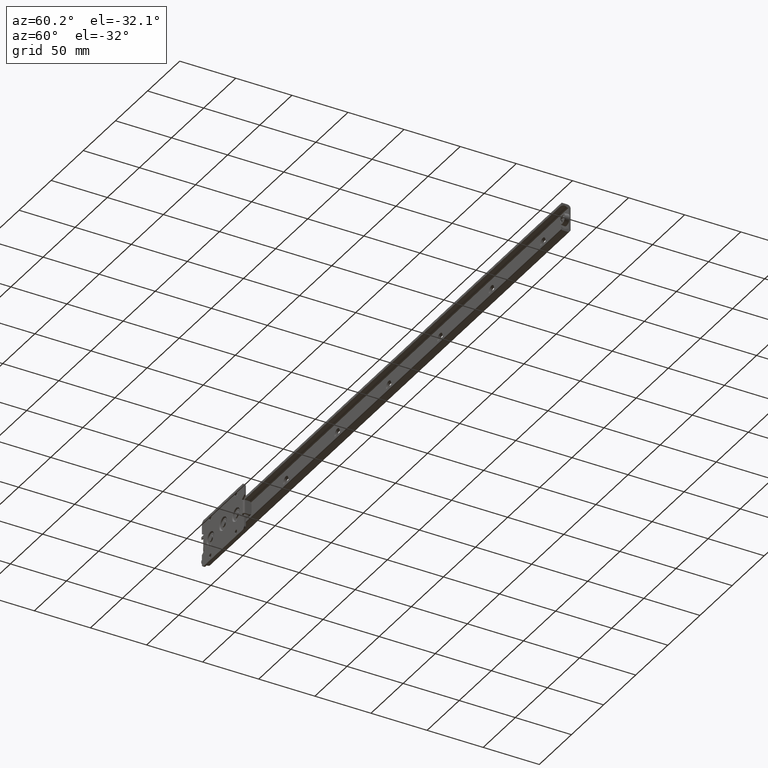
[diagram: clean part render]
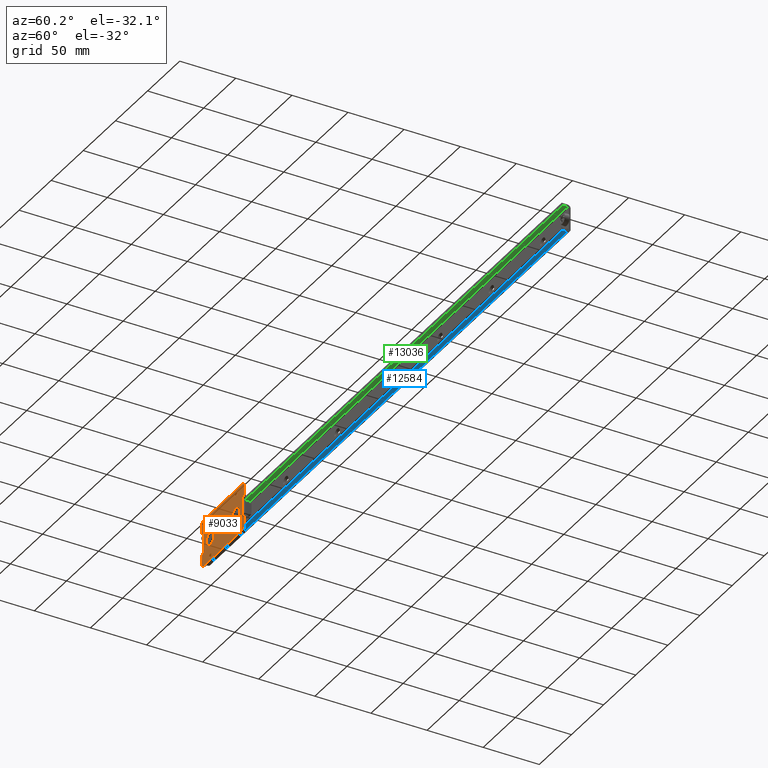
[diagram: same view with three faces highlighted in distinct colors, each labeled with its STEP entity id]
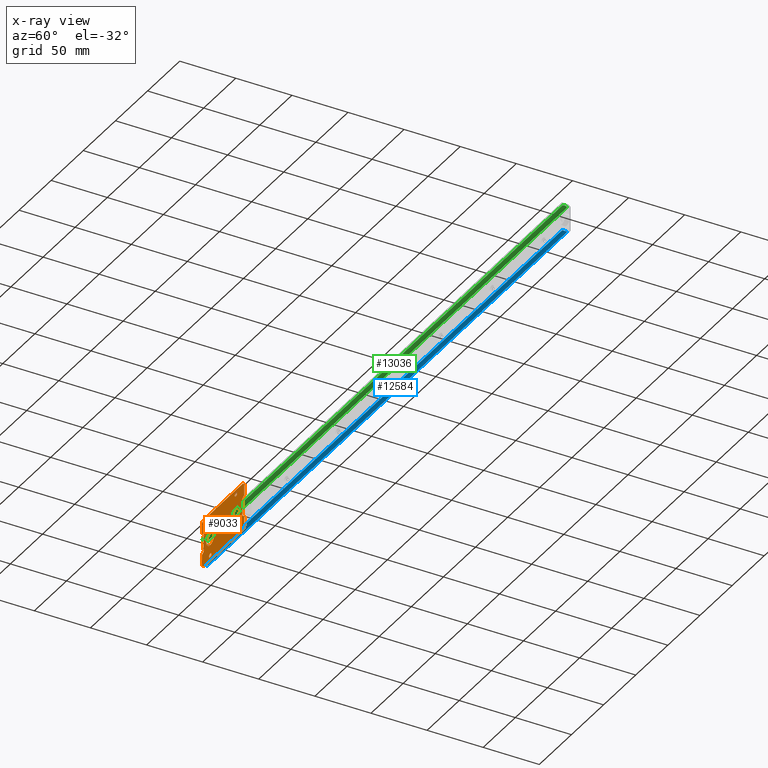
[diagram: x-ray of the same camera — body ghosted, the three highlighted faces saturated]
A machine part, auxiliary view with three faces highlighted in distinct colors.
The next image is the same camera in x-ray (body ghosted, the three faces saturated) — at least one of them is partly hidden behind the body in this view.
Their STEP definitions:

[orange] entity #9033 — the highlighted face is a freeform B-spline surface patch.
#6593=CARTESIAN_POINT('',(18.253264102769869,-12.0,17.106834944318980));
#6594=VERTEX_POINT('',#6593);
#6595=CARTESIAN_POINT('',(20.0,-12.0,15.250000000000000));
#6596=VERTEX_POINT('',#6595);
#6597=CARTESIAN_POINT('',(18.253264102769869,-12.000000000000002,17.106834944318983));
#6598=CARTESIAN_POINT('',(18.250000000000000,-12.000000000000004,17.053467335839208));
#6599=CARTESIAN_POINT('',(18.250000000000000,-12.0,17.0));
#6600=CARTESIAN_POINT('',(18.250000000000000,-12.0,15.250000000000002));
#6601=CARTESIAN_POINT('',(20.0,-12.0,15.250000000000000));
#6609=(BOUNDED_CURVE()B_SPLINE_CURVE(2,(#6597,#6598,#6599,#6600,#6601),.UNSPECIFIED.,.F.,.U.)B_SPLINE_CURVE_WITH_KNOTS((3,2,3),(0.239332962228832,0.250000000000000,0.500000000000000),.UNSPECIFIED.)CURVE()GEOMETRIC_REPRESENTATION_ITEM()RATIONAL_B_SPLINE_CURVE((0.976072041645049,0.987502787887992,1.0,0.707106781186547,1.0))REPRESENTATION_ITEM(''));
#6610=EDGE_CURVE('',#6594,#6596,#6609,.T.);
#6612=CARTESIAN_POINT('',(21.746735897230138,-12.0,16.893165055681020));
#6613=VERTEX_POINT('',#6612);
#6614=CARTESIAN_POINT('',(20.0,-12.0,15.250000000000000));
#6615=CARTESIAN_POINT('',(21.646235616959416,-12.0,15.250000000000002));
#6616=CARTESIAN_POINT('',(21.746735897230138,-12.000000000000002,16.893165055681024));
#6624=(BOUNDED_CURVE()B_SPLINE_CURVE(2,(#6614,#6615,#6616),.UNSPECIFIED.,.F.,.U.)B_SPLINE_CURVE_WITH_KNOTS((3,3),(0.500000000000000,0.739332962228833),.UNSPECIFIED.)CURVE()GEOMETRIC_REPRESENTATION_ITEM()RATIONAL_B_SPLINE_CURVE((1.0,0.719603993298555,0.976072041645050))REPRESENTATION_ITEM(''));
#6625=EDGE_CURVE('',#6596,#6613,#6624,.T.);
#6692=CARTESIAN_POINT('',(20.0,-12.0,18.750000000000000));
#6693=VERTEX_POINT('',#6692);
#6694=CARTESIAN_POINT('',(20.0,-12.0,18.750000000000000));
#6695=CARTESIAN_POINT('',(18.353764383040602,-12.0,18.750000000000000));
#6696=CARTESIAN_POINT('',(18.253264102769865,-12.000000000000002,17.106834944318983));
#6704=(BOUNDED_CURVE()B_SPLINE_CURVE(2,(#6694,#6695,#6696),.UNSPECIFIED.,.F.,.U.)B_SPLINE_CURVE_WITH_KNOTS((3,3),(0.0,0.239332962228832),.UNSPECIFIED.)CURVE()GEOMETRIC_REPRESENTATION_ITEM()RATIONAL_B_SPLINE_CURVE((1.0,0.719603993298556,0.976072041645048))REPRESENTATION_ITEM(''));
#6705=EDGE_CURVE('',#6693,#6594,#6704,.T.);
#6739=CARTESIAN_POINT('',(21.746735897230131,-11.999999999999996,16.893165055681020));
#6740=CARTESIAN_POINT('',(21.750000000000004,-12.0,16.946532664160792));
#6741=CARTESIAN_POINT('',(21.750000000000000,-12.0,17.0));
#6742=CARTESIAN_POINT('',(21.750000000000004,-12.0,18.750000000000007));
#6743=CARTESIAN_POINT('',(20.0,-12.0,18.750000000000000));
#6751=(BOUNDED_CURVE()B_SPLINE_CURVE(2,(#6739,#6740,#6741,#6742,#6743),.UNSPECIFIED.,.F.,.U.)B_SPLINE_CURVE_WITH_KNOTS((3,2,3),(0.739332962228833,0.750000000000000,1.0),.UNSPECIFIED.)CURVE()GEOMETRIC_REPRESENTATION_ITEM()RATIONAL_B_SPLINE_CURVE((0.976072041645049,0.987502787887992,1.0,0.707106781186547,1.0))REPRESENTATION_ITEM(''));
#6752=EDGE_CURVE('',#6613,#6693,#6751,.T.);
#6775=CARTESIAN_POINT('',(58.253264102769862,-12.0,17.106834944318980));
#6776=VERTEX_POINT('',#6775);
#6777=CARTESIAN_POINT('',(60.0,-12.0,15.250000000000000));
#6778=VERTEX_POINT('',#6777);
#6779=CARTESIAN_POINT('',(58.253264102769862,-12.000000000000005,17.106834944318976));
#6780=CARTESIAN_POINT('',(58.249999999999993,-12.000000000000005,17.053467335839208));
#6781=CARTESIAN_POINT('',(58.249999999999993,-12.0,17.0));
#6782=CARTESIAN_POINT('',(58.250000000000000,-12.0,15.250000000000002));
#6783=CARTESIAN_POINT('',(60.0,-12.0,15.250000000000000));
#6791=(BOUNDED_CURVE()B_SPLINE_CURVE(2,(#6779,#6780,#6781,#6782,#6783),.UNSPECIFIED.,.F.,.U.)B_SPLINE_CURVE_WITH_KNOTS((3,2,3),(0.239332962228832,0.250000000000000,0.500000000000000),.UNSPECIFIED.)CURVE()GEOMETRIC_REPRESENTATION_ITEM()RATIONAL_B_SPLINE_CURVE((0.976072041645049,0.987502787887992,1.0,0.707106781186547,1.0))REPRESENTATION_ITEM(''));
#6792=EDGE_CURVE('',#6776,#6778,#6791,.T.);
#6794=CARTESIAN_POINT('',(61.746735897230138,-12.0,16.893165055681020));
#6795=VERTEX_POINT('',#6794);
#6796=CARTESIAN_POINT('',(60.0,-12.0,15.250000000000000));
#6797=CARTESIAN_POINT('',(61.646235616959409,-12.000000000000002,15.249999999999998));
#6798=CARTESIAN_POINT('',(61.746735897230131,-11.999999999999998,16.893165055681017));
#6806=(BOUNDED_CURVE()B_SPLINE_CURVE(2,(#6796,#6797,#6798),.UNSPECIFIED.,.F.,.U.)B_SPLINE_CURVE_WITH_KNOTS((3,3),(0.500000000000000,0.739332962228832),.UNSPECIFIED.)CURVE()GEOMETRIC_REPRESENTATION_ITEM()RATIONAL_B_SPLINE_CURVE((1.0,0.719603993298556,0.976072041645048))REPRESENTATION_ITEM(''));
#6807=EDGE_CURVE('',#6778,#6795,#6806,.T.);
#6874=CARTESIAN_POINT('',(60.0,-12.0,18.750000000000000));
#6875=VERTEX_POINT('',#6874);
#6876=CARTESIAN_POINT('',(60.0,-12.0,18.750000000000000));
#6877=CARTESIAN_POINT('',(58.353764383040591,-11.999999999999998,18.750000000000007));
#6878=CARTESIAN_POINT('',(58.253264102769862,-12.000000000000005,17.106834944318976));
#6886=(BOUNDED_CURVE()B_SPLINE_CURVE(2,(#6876,#6877,#6878),.UNSPECIFIED.,.F.,.U.)B_SPLINE_CURVE_WITH_KNOTS((3,3),(0.0,0.239332962228832),.UNSPECIFIED.)CURVE()GEOMETRIC_REPRESENTATION_ITEM()RATIONAL_B_SPLINE_CURVE((1.0,0.719603993298555,0.976072041645049))REPRESENTATION_ITEM(''));
#6887=EDGE_CURVE('',#6875,#6776,#6886,.T.);
#6921=CARTESIAN_POINT('',(61.746735897230131,-12.000000000000005,16.893165055681024));
#6922=CARTESIAN_POINT('',(61.750000000000000,-11.999999999999995,16.946532664160799));
#6923=CARTESIAN_POINT('',(61.750000000000000,-12.0,17.0));
#6924=CARTESIAN_POINT('',(61.750000000000000,-12.0,18.750000000000007));
#6925=CARTESIAN_POINT('',(60.0,-12.0,18.750000000000000));
#6933=(BOUNDED_CURVE()B_SPLINE_CURVE(2,(#6921,#6922,#6923,#6924,#6925),.UNSPECIFIED.,.F.,.U.)B_SPLINE_CURVE_WITH_KNOTS((3,2,3),(0.739332962228832,0.750000000000000,1.0),.UNSPECIFIED.)CURVE()GEOMETRIC_REPRESENTATION_ITEM()RATIONAL_B_SPLINE_CURVE((0.976072041645049,0.987502787887992,1.0,0.707106781186547,1.0))REPRESENTATION_ITEM(''));
#6934=EDGE_CURVE('',#6795,#6875,#6933,.T.);
#6957=CARTESIAN_POINT('',(58.253264102769862,-12.0,-16.893165055681020));
#6958=VERTEX_POINT('',#6957);
#6959=CARTESIAN_POINT('',(60.0,-12.0,-18.750000000000000));
#6960=VERTEX_POINT('',#6959);
#6961=CARTESIAN_POINT('',(58.253264102769862,-12.000000000000005,-16.893165055681024));
#6962=CARTESIAN_POINT('',(58.249999999999993,-12.000000000000005,-16.946532664160799));
#6963=CARTESIAN_POINT('',(58.249999999999993,-12.0,-17.0));
#6964=CARTESIAN_POINT('',(58.250000000000000,-12.0,-18.750000000000007));
#6965=CARTESIAN_POINT('',(60.0,-12.0,-18.750000000000000));
#6973=(BOUNDED_CURVE()B_SPLINE_CURVE(2,(#6961,#6962,#6963,#6964,#6965),.UNSPECIFIED.,.F.,.U.)B_SPLINE_CURVE_WITH_KNOTS((3,2,3),(0.239332962228832,0.250000000000000,0.500000000000000),.UNSPECIFIED.)CURVE()GEOMETRIC_REPRESENTATION_ITEM()RATIONAL_B_SPLINE_CURVE((0.976072041645049,0.987502787887992,1.0,0.707106781186547,1.0))REPRESENTATION_ITEM(''));
#6974=EDGE_CURVE('',#6958,#6960,#6973,.T.);
#6976=CARTESIAN_POINT('',(61.746735897230117,-12.0,-17.106834944318980));
#6977=VERTEX_POINT('',#6976);
#6978=CARTESIAN_POINT('',(60.0,-12.0,-18.750000000000000));
#6979=CARTESIAN_POINT('',(61.646235616959409,-12.0,-18.750000000000000));
#6980=CARTESIAN_POINT('',(61.746735897230124,-12.000000000000002,-17.106834944318972));
#6988=(BOUNDED_CURVE()B_SPLINE_CURVE(2,(#6978,#6979,#6980),.UNSPECIFIED.,.F.,.U.)B_SPLINE_CURVE_WITH_KNOTS((3,3),(0.500000000000000,0.739332962228832),.UNSPECIFIED.)CURVE()GEOMETRIC_REPRESENTATION_ITEM()RATIONAL_B_SPLINE_CURVE((1.0,0.719603993298555,0.976072041645049))REPRESENTATION_ITEM(''));
#6989=EDGE_CURVE('',#6960,#6977,#6988,.T.);
#7056=CARTESIAN_POINT('',(60.0,-12.0,-15.250000000000000));
#7057=VERTEX_POINT('',#7056);
#7058=CARTESIAN_POINT('',(60.0,-12.0,-15.250000000000000));
#7059=CARTESIAN_POINT('',(58.353764383040591,-11.999999999999998,-15.250000000000000));
#7060=CARTESIAN_POINT('',(58.253264102769862,-12.000000000000005,-16.893165055681024));
#7068=(BOUNDED_CURVE()B_SPLINE_CURVE(2,(#7058,#7059,#7060),.UNSPECIFIED.,.F.,.U.)B_SPLINE_CURVE_WITH_KNOTS((3,3),(0.0,0.239332962228832),.UNSPECIFIED.)CURVE()GEOMETRIC_REPRESENTATION_ITEM()RATIONAL_B_SPLINE_CURVE((1.0,0.719603993298555,0.976072041645049))REPRESENTATION_ITEM(''));
#7069=EDGE_CURVE('',#7057,#6958,#7068,.T.);
#7103=CARTESIAN_POINT('',(61.746735897230131,-11.999999999999998,-17.106834944318983));
#7104=CARTESIAN_POINT('',(61.750000000000000,-11.999999999999998,-17.053467335839208));
#7105=CARTESIAN_POINT('',(61.750000000000000,-12.0,-17.0));
#7106=CARTESIAN_POINT('',(61.750000000000000,-12.0,-15.250000000000002));
#7107=CARTESIAN_POINT('',(60.0,-12.0,-15.250000000000000));
#7115=(BOUNDED_CURVE()B_SPLINE_CURVE(2,(#7103,#7104,#7105,#7106,#7107),.UNSPECIFIED.,.F.,.U.)B_SPLINE_CURVE_WITH_KNOTS((3,2,3),(0.739332962228832,0.750000000000000,1.0),.UNSPECIFIED.)CURVE()GEOMETRIC_REPRESENTATION_ITEM()RATIONAL_B_SPLINE_CURVE((0.976072041645048,0.987502787887992,1.0,0.707106781186547,1.0))REPRESENTATION_ITEM(''));
#7116=EDGE_CURVE('',#6977,#7057,#7115,.T.);
#7139=CARTESIAN_POINT('',(18.253264102769869,-12.0,-16.893165055681020));
#7140=VERTEX_POINT('',#7139);
#7141=CARTESIAN_POINT('',(20.0,-12.0,-18.750000000000000));
#7142=VERTEX_POINT('',#7141);
#7143=CARTESIAN_POINT('',(18.253264102769862,-12.0,-16.893165055681020));
#7144=CARTESIAN_POINT('',(18.250000000000004,-12.0,-16.946532664160792));
#7145=CARTESIAN_POINT('',(18.250000000000000,-12.0,-17.0));
#7146=CARTESIAN_POINT('',(18.250000000000000,-12.0,-18.750000000000007));
#7147=CARTESIAN_POINT('',(20.0,-12.0,-18.750000000000000));
#7155=(BOUNDED_CURVE()B_SPLINE_CURVE(2,(#7143,#7144,#7145,#7146,#7147),.UNSPECIFIED.,.F.,.U.)B_SPLINE_CURVE_WITH_KNOTS((3,2,3),(0.239332962228832,0.250000000000000,0.500000000000000),.UNSPECIFIED.)CURVE()GEOMETRIC_REPRESENTATION_ITEM()RATIONAL_B_SPLINE_CURVE((0.976072041645048,0.987502787887992,1.0,0.707106781186547,1.0))REPRESENTATION_ITEM(''));
#7156=EDGE_CURVE('',#7140,#7142,#7155,.T.);
#7158=CARTESIAN_POINT('',(21.746735897230138,-12.0,-17.106834944318980));
#7159=VERTEX_POINT('',#7158);
#7160=CARTESIAN_POINT('',(20.0,-12.0,-18.750000000000000));
#7161=CARTESIAN_POINT('',(21.646235616959405,-12.000000000000002,-18.750000000000007));
#7162=CARTESIAN_POINT('',(21.746735897230131,-11.999999999999998,-17.106834944318983));
#7170=(BOUNDED_CURVE()B_SPLINE_CURVE(2,(#7160,#7161,#7162),.UNSPECIFIED.,.F.,.U.)B_SPLINE_CURVE_WITH_KNOTS((3,3),(0.500000000000000,0.739332962228832),.UNSPECIFIED.)CURVE()GEOMETRIC_REPRESENTATION_ITEM()RATIONAL_B_SPLINE_CURVE((1.0,0.719603993298556,0.976072041645048))REPRESENTATION_ITEM(''));
#7171=EDGE_CURVE('',#7142,#7159,#7170,.T.);
#7238=CARTESIAN_POINT('',(20.0,-12.0,-15.250000000000000));
#7239=VERTEX_POINT('',#7238);
#7240=CARTESIAN_POINT('',(20.0,-12.0,-15.250000000000000));
#7241=CARTESIAN_POINT('',(18.353764383040602,-12.0,-15.250000000000007));
#7242=CARTESIAN_POINT('',(18.253264102769865,-12.000000000000002,-16.893165055681024));
#7250=(BOUNDED_CURVE()B_SPLINE_CURVE(2,(#7240,#7241,#7242),.UNSPECIFIED.,.F.,.U.)B_SPLINE_CURVE_WITH_KNOTS((3,3),(0.0,0.239332962228832),.UNSPECIFIED.)CURVE()GEOMETRIC_REPRESENTATION_ITEM()RATIONAL_B_SPLINE_CURVE((1.0,0.719603993298556,0.976072041645048))REPRESENTATION_ITEM(''));
#7251=EDGE_CURVE('',#7239,#7140,#7250,.T.);
#7285=CARTESIAN_POINT('',(21.746735897230131,-11.999999999999998,-17.106834944318983));
#7286=CARTESIAN_POINT('',(21.750000000000007,-11.999999999999998,-17.053467335839208));
#7287=CARTESIAN_POINT('',(21.750000000000000,-12.0,-17.0));
#7288=CARTESIAN_POINT('',(21.750000000000004,-12.0,-15.250000000000002));
#7289=CARTESIAN_POINT('',(20.0,-12.0,-15.250000000000000));
#7297=(BOUNDED_CURVE()B_SPLINE_CURVE(2,(#7285,#7286,#7287,#7288,#7289),.UNSPECIFIED.,.F.,.U.)B_SPLINE_CURVE_WITH_KNOTS((3,2,3),(0.739332962228832,0.750000000000000,1.0),.UNSPECIFIED.)CURVE()GEOMETRIC_REPRESENTATION_ITEM()RATIONAL_B_SPLINE_CURVE((0.976072041645048,0.987502787887992,1.0,0.707106781186547,1.0))REPRESENTATION_ITEM(''));
#7298=EDGE_CURVE('',#7159,#7239,#7297,.T.);
#7565=CARTESIAN_POINT('',(25.999526128379269,-11.999999999999980,-1.224603738494901));
#7566=VERTEX_POINT('',#7565);
#7567=CARTESIAN_POINT('',(20.0,-12.0,-7.299999999880897));
#7568=VERTEX_POINT('',#7567);
#7569=CARTESIAN_POINT('',(25.999526128379266,-11.999999999999982,-1.224603738494901));
#7570=CARTESIAN_POINT('',(25.999999863879104,-11.999999999999977,-1.262300381737864));
#7571=CARTESIAN_POINT('',(25.999999864308080,-11.999999999999980,-1.300000001586141));
#7572=CARTESIAN_POINT('',(25.999999932580341,-11.999999999999991,-7.300000000728162));
#7573=CARTESIAN_POINT('',(20.0,-12.0,-7.299999999880897));
#7581=(BOUNDED_CURVE()B_SPLINE_CURVE(2,(#7569,#7570,#7571,#7572,#7573),.UNSPECIFIED.,.F.,.U.)B_SPLINE_CURVE_WITH_KNOTS((3,2,3),(0.247784295224013,0.250000000000000,0.500000000000000),.UNSPECIFIED.)CURVE()GEOMETRIC_REPRESENTATION_ITEM()RATIONAL_B_SPLINE_CURVE((0.994854294038143,0.997404140384884,1.0,0.707106781186548,1.0))REPRESENTATION_ITEM(''));
#7582=EDGE_CURVE('',#7566,#7568,#7581,.T.);
#7599=CARTESIAN_POINT('',(14.000473871620740,-11.999999999999980,-1.375396261266892));
#7600=VERTEX_POINT('',#7599);
#7614=CARTESIAN_POINT('',(20.0,-12.0,-7.299999999880897));
#7615=CARTESIAN_POINT('',(14.074928512336681,-11.999999999999991,-7.299999999022919));
#7616=CARTESIAN_POINT('',(14.000473871620740,-11.999999999999982,-1.375396261266892));
#7624=(BOUNDED_CURVE()B_SPLINE_CURVE(2,(#7614,#7615,#7616),.UNSPECIFIED.,.F.,.U.)B_SPLINE_CURVE_WITH_KNOTS((3,3),(0.500000000000000,0.747784295224013),.UNSPECIFIED.)CURVE()GEOMETRIC_REPRESENTATION_ITEM()RATIONAL_B_SPLINE_CURVE((1.0,0.709702640801664,0.994854294038143))REPRESENTATION_ITEM(''));
#7625=EDGE_CURVE('',#7568,#7600,#7624,.T.);
#7659=CARTESIAN_POINT('',(20.0,-12.0,4.700000000119104));
#7660=VERTEX_POINT('',#7659);
#7661=CARTESIAN_POINT('',(20.0,-12.0,4.700000000119104));
#7662=CARTESIAN_POINT('',(25.925071487663331,-11.999999999999991,4.699999999261125));
#7663=CARTESIAN_POINT('',(25.999526128379266,-11.999999999999982,-1.224603738494901));
#7671=(BOUNDED_CURVE()B_SPLINE_CURVE(2,(#7661,#7662,#7663),.UNSPECIFIED.,.F.,.U.)B_SPLINE_CURVE_WITH_KNOTS((3,3),(0.0,0.247784295224013),.UNSPECIFIED.)CURVE()GEOMETRIC_REPRESENTATION_ITEM()RATIONAL_B_SPLINE_CURVE((1.0,0.709702640801664,0.994854294038143))REPRESENTATION_ITEM(''));
#7672=EDGE_CURVE('',#7660,#7566,#7671,.T.);
#7674=CARTESIAN_POINT('',(14.000473871620740,-11.999999999999982,-1.375396261266892));
#7675=CARTESIAN_POINT('',(14.000000136120901,-11.999999999999988,-1.337699618023929));
#7676=CARTESIAN_POINT('',(14.000000135691931,-11.999999999999980,-1.299999998175652));
#7677=CARTESIAN_POINT('',(14.000000067419668,-11.999999999999993,4.700000000966368));
#7678=CARTESIAN_POINT('',(20.0,-12.0,4.700000000119104));
#7686=(BOUNDED_CURVE()B_SPLINE_CURVE(2,(#7674,#7675,#7676,#7677,#7678),.UNSPECIFIED.,.F.,.U.)B_SPLINE_CURVE_WITH_KNOTS((3,2,3),(0.747784295224013,0.750000000000000,1.0),.UNSPECIFIED.)CURVE()GEOMETRIC_REPRESENTATION_ITEM()RATIONAL_B_SPLINE_CURVE((0.994854294038143,0.997404140384884,1.0,0.707106781186548,1.0))REPRESENTATION_ITEM(''));
#7687=EDGE_CURVE('',#7600,#7660,#7686,.T.);
#7739=CARTESIAN_POINT('',(42.417438583552851,-11.999999999999989,6.791446938037035));
#7740=VERTEX_POINT('',#7739);
#7741=CARTESIAN_POINT('',(40.0,-12.0,-4.700000000119104));
#7742=VERTEX_POINT('',#7741);
#7743=CARTESIAN_POINT('',(42.417438583552851,-11.999999999999989,6.791446938037035));
#7744=CARTESIAN_POINT('',(43.080661091759339,-11.999999999999989,6.500080437214601));
#7745=CARTESIAN_POINT('',(44.299123344477962,-11.999999999999970,5.673120638335184));
#7746=CARTESIAN_POINT('',(45.570028259856798,-12.000000000000041,3.866365508941541));
#7747=CARTESIAN_POINT('',(46.096219776811459,-11.999999999999890,1.810427759525662));
#7748=CARTESIAN_POINT('',(45.913427078550527,-12.000000000000121,-0.209576198316181));
#7749=CARTESIAN_POINT('',(45.242828843975687,-11.999999999999950,-1.753189596226588));
#7750=CARTESIAN_POINT('',(44.159361720147189,-12.000000000000020,-3.134095510074420));
#7751=CARTESIAN_POINT('',(42.513035806436960,-11.999999999999989,-4.331006993158419));
#7752=CARTESIAN_POINT('',(40.894885186730022,-12.000000000000011,-4.701340538429006));
#7753=CARTESIAN_POINT('',(40.0,-12.0,-4.700000000119104));
#7754=B_SPLINE_CURVE_WITH_KNOTS('',3,(#7743,#7744,#7745,#7746,#7747,#7748,#7749,#7750,#7751,#7752,#7753),.UNSPECIFIED.,.F.,.U.,(4,1,1,1,1,1,1,1,4),(0.000003434715655,2.173048123057747,4.346301483413237,6.519227045998454,8.436265871869519,10.353870111927790,11.504347917379251,13.677446263479091,16.361723804641510),.UNSPECIFIED.);
#7755=EDGE_CURVE('',#7740,#7742,#7754,.T.);
#7774=CARTESIAN_POINT('',(37.582561416447149,-11.999999999999989,-4.191446938275247));
#7775=VERTEX_POINT('',#7774);
#7791=CARTESIAN_POINT('',(40.0,-12.0,-4.700000000119104));
#7792=CARTESIAN_POINT('',(38.737788942303773,-11.999999999999996,-4.699999953588034));
#7793=CARTESIAN_POINT('',(37.582561416447149,-11.999999999999989,-4.191446938275248));
#7801=(BOUNDED_CURVE()B_SPLINE_CURVE(2,(#7791,#7792,#7793),.UNSPECIFIED.,.F.,.U.)B_SPLINE_CURVE_WITH_KNOTS((3,3),(0.500000000000000,0.568414990429764),.UNSPECIFIED.)CURVE()GEOMETRIC_REPRESENTATION_ITEM()RATIONAL_B_SPLINE_CURVE((1.0,0.919846852951739,0.883563120209257))REPRESENTATION_ITEM(''));
#7802=EDGE_CURVE('',#7742,#7775,#7801,.T.);
#7850=CARTESIAN_POINT('',(40.0,-12.0,7.299999999880897));
#7851=VERTEX_POINT('',#7850);
#7852=CARTESIAN_POINT('',(40.0,-12.0,7.299999999880897));
#7853=CARTESIAN_POINT('',(41.262211057696227,-11.999999999999996,7.299999953349825));
#7854=CARTESIAN_POINT('',(42.417438583552851,-11.999999999999989,6.791446938037035));
#7862=(BOUNDED_CURVE()B_SPLINE_CURVE(2,(#7852,#7853,#7854),.UNSPECIFIED.,.F.,.U.)B_SPLINE_CURVE_WITH_KNOTS((3,3),(0.0,0.068414990429764),.UNSPECIFIED.)CURVE()GEOMETRIC_REPRESENTATION_ITEM()RATIONAL_B_SPLINE_CURVE((1.0,0.919846852951739,0.883563120209257))REPRESENTATION_ITEM(''));
#7863=EDGE_CURVE('',#7851,#7740,#7862,.T.);
#7865=CARTESIAN_POINT('',(37.582561416447149,-11.999999999999989,-4.191446938275247));
#7866=CARTESIAN_POINT('',(36.684404354082382,-11.999999999999989,-3.798311232173115));
#7867=CARTESIAN_POINT('',(35.368808782884727,-11.999999999999980,-2.773405479771441));
#7868=CARTESIAN_POINT('',(34.301719443598252,-12.000000000000020,-0.848298275589498));
#7869=CARTESIAN_POINT('',(33.901740848918017,-11.999999999999989,1.045780813304776));
#7870=CARTESIAN_POINT('',(34.089384366799592,-12.0,2.724144679127025));
#7871=CARTESIAN_POINT('',(34.722173586435382,-12.000000000000030,4.269076495971489));
#7872=CARTESIAN_POINT('',(35.700350342913943,-12.000000000000110,5.632293796087303));
#7873=CARTESIAN_POINT('',(37.487084756177609,-11.999999999999870,6.930970546663708));
#7874=CARTESIAN_POINT('',(39.105066962097588,-12.000000000000069,7.301370840819645));
#7875=CARTESIAN_POINT('',(40.0,-12.0,7.299999999880897));
#7876=B_SPLINE_CURVE_WITH_KNOTS('',3,(#7865,#7866,#7867,#7868,#7869,#7870,#7871,#7872,#7873,#7874,#7875),.UNSPECIFIED.,.F.,.U.,(4,1,1,1,1,1,1,1,4),(0.000003434729308,2.940036482878879,4.857583721139571,6.519227046005797,8.691908458026582,9.842580746412404,11.504347917381910,13.677446263479970,16.361723804641510),.UNSPECIFIED.);
#7877=EDGE_CURVE('',#7775,#7851,#7876,.T.);
#7929=CARTESIAN_POINT('',(62.417438583552851,-11.999999999999989,4.191446938275245));
#7930=VERTEX_POINT('',#7929);
#7931=CARTESIAN_POINT('',(60.0,-12.0,-7.299999999880897));
#7932=VERTEX_POINT('',#7931);
#7933=CARTESIAN_POINT('',(62.417438583552851,-11.999999999999989,4.191446938275245));
#7934=CARTESIAN_POINT('',(63.080684823675668,-11.999999999999989,3.900131243529623));
#7935=CARTESIAN_POINT('',(64.155601078833001,-12.000000000000011,3.170183690165617));
#7936=CARTESIAN_POINT('',(65.151814909587046,-12.0,1.874126034983695));
#7937=CARTESIAN_POINT('',(65.832180570791920,-11.999999999999950,0.398411820448266));
#7938=CARTESIAN_POINT('',(66.103228203578794,-12.000000000000020,-1.224587233475260));
#7939=CARTESIAN_POINT('',(65.845300768007277,-11.999999999999920,-2.882366100383242));
#7940=CARTESIAN_POINT('',(65.213411108528476,-12.000000000000030,-4.427824111660323));
#7941=CARTESIAN_POINT('',(64.170637987679356,-11.999999999999989,-5.756554847977623));
#7942=CARTESIAN_POINT('',(62.342173984788523,-12.000000000000011,-6.969548983568563));
#7943=CARTESIAN_POINT('',(60.895069739493522,-12.0,-7.301442874962537));
#7944=CARTESIAN_POINT('',(60.0,-12.0,-7.299999999880897));
#7945=B_SPLINE_CURVE_WITH_KNOTS('',3,(#7933,#7934,#7935,#7936,#7937,#7938,#7939,#7940,#7941,#7942,#7943,#7944),.UNSPECIFIED.,.F.,.U.,(4,1,1,1,1,1,1,1,1,4),(0.000003434716373,2.173048123058228,3.834966980046985,4.857583721130599,7.029985284879372,8.691908458020542,9.842580746407222,12.015661897082961,13.677446263478590,16.361723804641500),.UNSPECIFIED.);
#7946=EDGE_CURVE('',#7930,#7932,#7945,.T.);
#7965=CARTESIAN_POINT('',(57.582561416447149,-11.999999999999989,-6.791446938037039));
#7966=VERTEX_POINT('',#7965);
#7982=CARTESIAN_POINT('',(60.0,-12.0,-7.299999999880897));
#7983=CARTESIAN_POINT('',(58.737788942303766,-11.999999999999995,-7.299999953349825));
#7984=CARTESIAN_POINT('',(57.582561416447149,-11.999999999999986,-6.791446938037038));
#7992=(BOUNDED_CURVE()B_SPLINE_CURVE(2,(#7982,#7983,#7984),.UNSPECIFIED.,.F.,.U.)B_SPLINE_CURVE_WITH_KNOTS((3,3),(0.500000000000000,0.568414990429764),.UNSPECIFIED.)CURVE()GEOMETRIC_REPRESENTATION_ITEM()RATIONAL_B_SPLINE_CURVE((1.0,0.919846852951740,0.883563120209257))REPRESENTATION_ITEM(''));
#7993=EDGE_CURVE('',#7932,#7966,#7992,.T.);
#8041=CARTESIAN_POINT('',(60.0,-12.0,4.700000000119104));
#8042=VERTEX_POINT('',#8041);
#8043=CARTESIAN_POINT('',(60.0,-12.0,4.700000000119104));
#8044=CARTESIAN_POINT('',(61.262211057696241,-11.999999999999996,4.699999953588031));
#8045=CARTESIAN_POINT('',(62.417438583552851,-11.999999999999989,4.191446938275245));
#8053=(BOUNDED_CURVE()B_SPLINE_CURVE(2,(#8043,#8044,#8045),.UNSPECIFIED.,.F.,.U.)B_SPLINE_CURVE_WITH_KNOTS((3,3),(0.0,0.068414990429764),.UNSPECIFIED.)CURVE()GEOMETRIC_REPRESENTATION_ITEM()RATIONAL_B_SPLINE_CURVE((1.0,0.919846852951740,0.883563120209257))REPRESENTATION_ITEM(''));
#8054=EDGE_CURVE('',#8042,#7930,#8053,.T.);
#8056=CARTESIAN_POINT('',(57.582561416447149,-11.999999999999989,-6.791446938037039));
#8057=CARTESIAN_POINT('',(56.919305903249587,-12.000000000000011,-6.500120546780979));
#8058=CARTESIAN_POINT('',(55.772654630908242,-11.999999999999959,-5.721606491864868));
#8059=CARTESIAN_POINT('',(54.749978832730967,-11.999999999999980,-4.331026746045365));
#8060=CARTESIAN_POINT('',(54.133408603870862,-12.000000000000030,-2.827559198245722));
#8061=CARTESIAN_POINT('',(53.922662458207803,-11.999999999999940,-1.375810798803039));
#8062=CARTESIAN_POINT('',(54.155559473893547,-12.000000000000020,0.367721851000539));
#8063=CARTESIAN_POINT('',(54.911384840811728,-11.999999999999989,2.109734283296044));
#8064=CARTESIAN_POINT('',(56.408289817417163,-12.0,3.681105619226592));
#8065=CARTESIAN_POINT('',(58.253050169162492,-12.000000000000011,4.541487454457882));
#8066=CARTESIAN_POINT('',(59.488770757611242,-12.0,4.700049137966844));
#8067=CARTESIAN_POINT('',(60.0,-12.0,4.700000000119104));
#8068=B_SPLINE_CURVE_WITH_KNOTS('',3,(#8056,#8057,#8058,#8059,#8060,#8061,#8062,#8063,#8064,#8065,#8066,#8067),.UNSPECIFIED.,.F.,.U.,(4,1,1,1,1,1,1,1,1,4),(0.000003434728924,2.173048123069821,4.090638327036217,5.113188496539976,7.029985284887017,8.436265871875190,10.353870111931551,12.654883234897770,14.827913541613739,16.361723804641510),.UNSPECIFIED.);
#8069=EDGE_CURVE('',#7966,#8042,#8068,.T.);
#8304=CARTESIAN_POINT('',(9.500000000000000,-12.0,6.0));
#8305=VERTEX_POINT('',#8304);
#8323=CARTESIAN_POINT('',(9.499999999999890,-12.0,-6.0));
#8324=VERTEX_POINT('',#8323);
#8338=CARTESIAN_POINT('',(9.500000000000000,-12.0,6.0));
#8339=CARTESIAN_POINT('',(9.499999999999890,-12.0,-6.0));
#8340=QUASI_UNIFORM_CURVE('',1,(#8338,#8339),.UNSPECIFIED.,.F.,.U.);
#8341=EDGE_CURVE('',#8305,#8324,#8340,.T.);
#8362=CARTESIAN_POINT('',(70.499999999866006,-12.0,-5.999999999999830));
#8363=VERTEX_POINT('',#8362);
#8381=CARTESIAN_POINT('',(70.499999999865892,-12.0,6.0));
#8382=VERTEX_POINT('',#8381);
#8392=CARTESIAN_POINT('',(70.499999999866006,-12.0,-5.999999999999830));
#8393=CARTESIAN_POINT('',(70.499999999865892,-12.0,6.0));
#8394=QUASI_UNIFORM_CURVE('',1,(#8392,#8393),.UNSPECIFIED.,.F.,.U.);
#8395=EDGE_CURVE('',#8363,#8382,#8394,.T.);
#8744=CARTESIAN_POINT('',(3.703300127920689,-12.0,23.097899918595861));
#8745=CARTESIAN_POINT('',(76.296701642337155,-12.0,23.097899918595861));
#8746=CARTESIAN_POINT('',(3.703300127920689,-12.0,-23.097901045123638));
#8747=CARTESIAN_POINT('',(76.296701642337155,-12.0,-23.097901045123638));
#8748=B_SPLINE_SURFACE_WITH_KNOTS('',1,1,((#8744,#8746),(#8745,#8747)),.UNSPECIFIED.,.F.,.F.,.U.,(2,2),(2,2),(0.0,72.593401514416470),(0.0,46.195800963719492),.UNSPECIFIED.);
#8749=CARTESIAN_POINT('',(69.999999999866006,-12.0,-7.866025403784390));
#8750=VERTEX_POINT('',#8749);
#8751=CARTESIAN_POINT('',(70.499999999866006,-12.0,-5.999999999999830));
#8752=CARTESIAN_POINT('',(70.253860332853492,-12.000000000000020,-5.998226429423962));
#8753=CARTESIAN_POINT('',(69.902137241339403,-11.999999999999980,-6.137110061467178));
#8754=CARTESIAN_POINT('',(69.575604464006346,-12.000000000000030,-6.548804527188719));
#8755=CARTESIAN_POINT('',(69.466458513720042,-11.999999999999950,-6.955740974637651));
#8756=CARTESIAN_POINT('',(69.565564032678196,-12.000000000000091,-7.475684059847396));
#8757=CARTESIAN_POINT('',(69.810211718946405,-11.999999999999920,-7.757732903314847));
#8758=CARTESIAN_POINT('',(69.999999999866006,-12.0,-7.866025403784390));
#8759=B_SPLINE_CURVE_WITH_KNOTS('',3,(#8751,#8752,#8753,#8754,#8755,#8756,#8757,#8758),.UNSPECIFIED.,.F.,.U.,(4,1,1,1,1,4),(0.000002588621065,0.736562336141135,1.063925926589397,1.554798738332654,1.964042204380849,2.618722076300474),.UNSPECIFIED.);
#8760=EDGE_CURVE('',#8363,#8750,#8759,.T.);
#8761=ORIENTED_EDGE('',*,*,#8760,.F.);
#8762=ORIENTED_EDGE('',*,*,#8395,.T.);
#8763=CARTESIAN_POINT('',(69.999999999866006,-12.0,7.866025403784509));
#8764=VERTEX_POINT('',#8763);
#8765=CARTESIAN_POINT('',(69.999999999866006,-12.0,7.866025403784509));
#8766=CARTESIAN_POINT('',(69.858074913110798,-11.999999999999989,7.784491006556234));
#8767=CARTESIAN_POINT('',(69.636427998918563,-12.000000000000011,7.569166148650353));
#8768=CARTESIAN_POINT('',(69.482831128306799,-12.000000000000011,7.150897765101615));
#8769=CARTESIAN_POINT('',(69.509565744896491,-12.0,6.678055665812940));
#8770=CARTESIAN_POINT('',(69.820193004696989,-11.999999999999989,6.168945390153572));
#8771=CARTESIAN_POINT('',(70.254098784185217,-12.0,5.998280469894238));
#8772=CARTESIAN_POINT('',(70.499999999865892,-12.0,6.0));
#8773=B_SPLINE_CURVE_WITH_KNOTS('',3,(#8765,#8766,#8767,#8768,#8769,#8770,#8771,#8772),.UNSPECIFIED.,.F.,.U.,(4,1,1,1,1,4),(0.000002588620637,0.490933051975952,0.900283323436666,1.309362332460517,1.882162328780529,2.618722076300408),.UNSPECIFIED.);
#8774=EDGE_CURVE('',#8764,#8382,#8773,.T.);
#8775=ORIENTED_EDGE('',*,*,#8774,.F.);
#8776=CARTESIAN_POINT('',(72.499999999865892,-12.0,9.309401076758491));
#8777=VERTEX_POINT('',#8776);
#8778=CARTESIAN_POINT('',(69.999999999866006,-12.0,7.866025403784509));
#8779=CARTESIAN_POINT('',(72.499999999865892,-12.0,9.309401076758491));
#8780=QUASI_UNIFORM_CURVE('',1,(#8778,#8779),.UNSPECIFIED.,.F.,.U.);
#8781=EDGE_CURVE('',#8764,#8777,#8780,.T.);
#8782=ORIENTED_EDGE('',*,*,#8781,.T.);
#8783=CARTESIAN_POINT('',(73.0,-12.0,10.175426480620301));
#8784=VERTEX_POINT('',#8783);
#8785=CARTESIAN_POINT('',(72.499999999865921,-12.0,9.309401076758450));
#8786=CARTESIAN_POINT('',(73.000000000000014,-12.000000000000005,9.598076211327461));
#8787=CARTESIAN_POINT('',(73.0,-12.0,10.175426480620301));
#8795=(BOUNDED_CURVE()B_SPLINE_CURVE(2,(#8785,#8786,#8787),.UNSPECIFIED.,.F.,.U.)CURVE()GEOMETRIC_REPRESENTATION_ITEM()QUASI_UNIFORM_CURVE()RATIONAL_B_SPLINE_CURVE((1.0,0.866025403745734,1.0))REPRESENTATION_ITEM(''));
#8796=EDGE_CURVE('',#8777,#8784,#8795,.T.);
#8797=ORIENTED_EDGE('',*,*,#8796,.T.);
#8798=CARTESIAN_POINT('',(73.0,-12.0,18.0));
#8799=VERTEX_POINT('',#8798);
#8800=CARTESIAN_POINT('',(73.0,-12.0,10.175426480620301));
#8801=CARTESIAN_POINT('',(73.0,-12.0,18.0));
#8802=QUASI_UNIFORM_CURVE('',1,(#8800,#8801),.UNSPECIFIED.,.F.,.U.);
#8803=EDGE_CURVE('',#8784,#8799,#8802,.T.);
#8804=ORIENTED_EDGE('',*,*,#8803,.T.);
#8805=CARTESIAN_POINT('',(70.0,-12.0,21.0));
#8806=VERTEX_POINT('',#8805);
#8807=CARTESIAN_POINT('',(73.000000000000014,-12.0,18.0));
#8808=CARTESIAN_POINT('',(73.000000000000014,-12.0,21.000000000000004));
#8809=CARTESIAN_POINT('',(70.0,-12.0,21.0));
#8817=(BOUNDED_CURVE()B_SPLINE_CURVE(2,(#8807,#8808,#8809),.UNSPECIFIED.,.F.,.U.)CURVE()GEOMETRIC_REPRESENTATION_ITEM()QUASI_UNIFORM_CURVE()RATIONAL_B_SPLINE_CURVE((1.0,0.707106781186548,1.0))REPRESENTATION_ITEM(''));
#8818=EDGE_CURVE('',#8799,#8806,#8817,.T.);
#8819=ORIENTED_EDGE('',*,*,#8818,.T.);
#8820=CARTESIAN_POINT('',(10.0,-12.0,21.0));
#8821=VERTEX_POINT('',#8820);
#8822=CARTESIAN_POINT('',(70.0,-12.0,21.0));
#8823=CARTESIAN_POINT('',(10.0,-12.0,21.0));
#8824=QUASI_UNIFORM_CURVE('',1,(#8822,#8823),.UNSPECIFIED.,.F.,.U.);
#8825=EDGE_CURVE('',#8806,#8821,#8824,.T.);
#8826=ORIENTED_EDGE('',*,*,#8825,.T.);
#8827=CARTESIAN_POINT('',(7.0,-12.0,18.0));
#8828=VERTEX_POINT('',#8827);
#8829=CARTESIAN_POINT('',(10.0,-12.0,21.0));
#8830=CARTESIAN_POINT('',(6.999999999999999,-12.0,21.000000000000004));
#8831=CARTESIAN_POINT('',(7.0,-12.0,18.0));
#8839=(BOUNDED_CURVE()B_SPLINE_CURVE(2,(#8829,#8830,#8831),.UNSPECIFIED.,.F.,.U.)CURVE()GEOMETRIC_REPRESENTATION_ITEM()QUASI_UNIFORM_CURVE()RATIONAL_B_SPLINE_CURVE((1.0,0.707106781186548,1.0))REPRESENTATION_ITEM(''));
#8840=EDGE_CURVE('',#8821,#8828,#8839,.T.);
#8841=ORIENTED_EDGE('',*,*,#8840,.T.);
#8842=CARTESIAN_POINT('',(7.0,-12.0,10.175426480542900));
#8843=VERTEX_POINT('',#8842);
#8844=CARTESIAN_POINT('',(7.0,-12.0,18.0));
#8845=CARTESIAN_POINT('',(7.0,-12.0,10.175426480542900));
#8846=QUASI_UNIFORM_CURVE('',1,(#8844,#8845),.UNSPECIFIED.,.F.,.U.);
#8847=EDGE_CURVE('',#8828,#8843,#8846,.T.);
#8848=ORIENTED_EDGE('',*,*,#8847,.T.);
#8849=CARTESIAN_POINT('',(7.500000000000000,-12.0,9.309401076758460));
#8850=VERTEX_POINT('',#8849);
#8851=CARTESIAN_POINT('',(7.0,-12.0,10.175426480542900));
#8852=CARTESIAN_POINT('',(7.0,-11.999999999999995,9.598076211353273));
#8853=CARTESIAN_POINT('',(7.500000000000001,-12.0,9.309401076758460));
#8861=(BOUNDED_CURVE()B_SPLINE_CURVE(2,(#8851,#8852,#8853),.UNSPECIFIED.,.F.,.U.)CURVE()GEOMETRIC_REPRESENTATION_ITEM()QUASI_UNIFORM_CURVE()RATIONAL_B_SPLINE_CURVE((1.0,0.866025403784439,1.0))REPRESENTATION_ITEM(''));
#8862=EDGE_CURVE('',#8843,#8850,#8861,.T.);
#8863=ORIENTED_EDGE('',*,*,#8862,.T.);
#8864=CARTESIAN_POINT('',(9.999999999999890,-12.0,7.866025403784509));
#8865=VERTEX_POINT('',#8864);
#8866=CARTESIAN_POINT('',(7.500000000000000,-12.0,9.309401076758460));
#8867=CARTESIAN_POINT('',(9.999999999999890,-12.0,7.866025403784509));
#8868=QUASI_UNIFORM_CURVE('',1,(#8866,#8867),.UNSPECIFIED.,.F.,.U.);
#8869=EDGE_CURVE('',#8850,#8865,#8868,.T.);
#8870=ORIENTED_EDGE('',*,*,#8869,.T.);
#8871=CARTESIAN_POINT('',(9.500000000000000,-12.0,6.0));
#8872=CARTESIAN_POINT('',(9.746144250889842,-12.0,5.998177540650355));
#8873=CARTESIAN_POINT('',(10.097860869603579,-12.000000000000011,6.137161168565445));
#8874=CARTESIAN_POINT('',(10.424387248522560,-12.0,6.548773771027993));
#8875=CARTESIAN_POINT('',(10.533535200323170,-11.999999999999980,6.955746193569314));
#8876=CARTESIAN_POINT('',(10.434501773171160,-12.000000000000011,7.475746288627800));
#8877=CARTESIAN_POINT('',(10.189705285182560,-12.000000000000020,7.757660537073986));
#8878=CARTESIAN_POINT('',(9.999999999999890,-12.0,7.866025403784509));
#8879=B_SPLINE_CURVE_WITH_KNOTS('',3,(#8871,#8872,#8873,#8874,#8875,#8876,#8877,#8878),.UNSPECIFIED.,.F.,.U.,(4,1,1,1,1,4),(0.000002588621381,0.736562336141077,1.063925926589300,1.554798738332545,1.964042204380758,2.618722076300585),.UNSPECIFIED.);
#8880=EDGE_CURVE('',#8305,#8865,#8879,.T.);
#8881=ORIENTED_EDGE('',*,*,#8880,.F.);
#8882=ORIENTED_EDGE('',*,*,#8341,.T.);
#8883=CARTESIAN_POINT('',(9.999999999999890,-12.0,-7.866025403784390));
#8884=VERTEX_POINT('',#8883);
#8885=CARTESIAN_POINT('',(9.999999999999890,-12.0,-7.866025403784390));
#8886=CARTESIAN_POINT('',(10.213930905447180,-12.000000000000011,-7.744522617657632));
#8887=CARTESIAN_POINT('',(10.485775042534771,-11.999999999999970,-7.402694527813520));
#8888=CARTESIAN_POINT('',(10.520410874345229,-12.000000000000020,-6.869745325553745));
#8889=CARTESIAN_POINT('',(10.389799234438589,-11.999999999999980,-6.505594040240458));
#8890=CARTESIAN_POINT('',(10.097956443306121,-12.000000000000050,-6.137078074025265));
#8891=CARTESIAN_POINT('',(9.746125237758152,-11.999999999999950,-5.998209700067614));
#8892=CARTESIAN_POINT('',(9.499999999999890,-12.0,-6.0));
#8893=B_SPLINE_CURVE_WITH_KNOTS('',3,(#8885,#8886,#8887,#8888,#8889,#8890,#8891,#8892),.UNSPECIFIED.,.F.,.U.,(4,1,1,1,1,4),(0.000002588621015,0.736562336140875,1.227536015582505,1.554798738332434,1.882162328780700,2.618722076300518),.UNSPECIFIED.);
#8894=EDGE_CURVE('',#8884,#8324,#8893,.T.);
#8895=ORIENTED_EDGE('',*,*,#8894,.F.);
#8896=CARTESIAN_POINT('',(7.500000000000000,-12.0,-9.309401076758380));
#8897=VERTEX_POINT('',#8896);
#8898=CARTESIAN_POINT('',(9.999999999999890,-12.0,-7.866025403784390));
#8899=CARTESIAN_POINT('',(7.500000000000000,-12.0,-9.309401076758380));
#8900=QUASI_UNIFORM_CURVE('',1,(#8898,#8899),.UNSPECIFIED.,.F.,.U.);
#8901=EDGE_CURVE('',#8884,#8897,#8900,.T.);
#8902=ORIENTED_EDGE('',*,*,#8901,.T.);
#8903=CARTESIAN_POINT('',(6.999999999999890,-12.0,-10.175426480542880));
#8904=VERTEX_POINT('',#8903);
#8905=CARTESIAN_POINT('',(7.499999999999998,-12.0,-9.309401076758377));
#8906=CARTESIAN_POINT('',(6.999999999999889,-12.000000000000002,-9.598076211353170));
#8907=CARTESIAN_POINT('',(6.999999999999889,-12.0,-10.175426480542880));
#8915=(BOUNDED_CURVE()B_SPLINE_CURVE(2,(#8905,#8906,#8907),.UNSPECIFIED.,.F.,.U.)CURVE()GEOMETRIC_REPRESENTATION_ITEM()QUASI_UNIFORM_CURVE()RATIONAL_B_SPLINE_CURVE((1.0,0.866025403784407,1.0))REPRESENTATION_ITEM(''));
#8916=EDGE_CURVE('',#8897,#8904,#8915,.T.);
#8917=ORIENTED_EDGE('',*,*,#8916,.T.);
#8918=CARTESIAN_POINT('',(6.999999999999890,-12.0,-18.0));
#8919=VERTEX_POINT('',#8918);
#8920=CARTESIAN_POINT('',(6.999999999999890,-12.0,-10.175426480542880));
#8921=CARTESIAN_POINT('',(6.999999999999890,-12.0,-18.0));
#8922=QUASI_UNIFORM_CURVE('',1,(#8920,#8921),.UNSPECIFIED.,.F.,.U.);
#8923=EDGE_CURVE('',#8904,#8919,#8922,.T.);
#8924=ORIENTED_EDGE('',*,*,#8923,.T.);
#8925=CARTESIAN_POINT('',(9.999999999999890,-12.0,-21.0));
#8926=VERTEX_POINT('',#8925);
#8927=CARTESIAN_POINT('',(6.999999999999889,-12.0,-18.0));
#8928=CARTESIAN_POINT('',(6.999999999999890,-12.0,-21.000000000000004));
#8929=CARTESIAN_POINT('',(9.999999999999890,-12.0,-21.0));
#8937=(BOUNDED_CURVE()B_SPLINE_CURVE(2,(#8927,#8928,#8929),.UNSPECIFIED.,.F.,.U.)CURVE()GEOMETRIC_REPRESENTATION_ITEM()QUASI_UNIFORM_CURVE()RATIONAL_B_SPLINE_CURVE((1.0,0.707106781186548,1.0))REPRESENTATION_ITEM(''));
#8938=EDGE_CURVE('',#8919,#8926,#8937,.T.);
#8939=ORIENTED_EDGE('',*,*,#8938,.T.);
#8940=CARTESIAN_POINT('',(70.0,-12.0,-21.0));
#8941=VERTEX_POINT('',#8940);
#8942=CARTESIAN_POINT('',(9.999999999999890,-12.0,-21.0));
#8943=CARTESIAN_POINT('',(70.0,-12.0,-21.0));
#8944=QUASI_UNIFORM_CURVE('',1,(#8942,#8943),.UNSPECIFIED.,.F.,.U.);
#8945=EDGE_CURVE('',#8926,#8941,#8944,.T.);
#8946=ORIENTED_EDGE('',*,*,#8945,.T.);
#8947=CARTESIAN_POINT('',(73.0,-12.0,-18.0));
#8948=VERTEX_POINT('',#8947);
#8949=CARTESIAN_POINT('',(70.0,-12.0,-21.0));
#8950=CARTESIAN_POINT('',(73.000000000000014,-12.0,-21.000000000000004));
#8951=CARTESIAN_POINT('',(73.000000000000014,-12.0,-18.0));
#8959=(BOUNDED_CURVE()B_SPLINE_CURVE(2,(#8949,#8950,#8951),.UNSPECIFIED.,.F.,.U.)CURVE()GEOMETRIC_REPRESENTATION_ITEM()QUASI_UNIFORM_CURVE()RATIONAL_B_SPLINE_CURVE((1.0,0.707106781186548,1.0))REPRESENTATION_ITEM(''));
#8960=EDGE_CURVE('',#8941,#8948,#8959,.T.);
#8961=ORIENTED_EDGE('',*,*,#8960,.T.);
#8962=CARTESIAN_POINT('',(73.0,-12.0,-10.175426480620199));
#8963=VERTEX_POINT('',#8962);
#8964=CARTESIAN_POINT('',(73.0,-12.0,-18.0));
#8965=CARTESIAN_POINT('',(73.0,-12.0,-10.175426480620199));
#8966=QUASI_UNIFORM_CURVE('',1,(#8964,#8965),.UNSPECIFIED.,.F.,.U.);
#8967=EDGE_CURVE('',#8948,#8963,#8966,.T.);
#8968=ORIENTED_EDGE('',*,*,#8967,.T.);
#8969=CARTESIAN_POINT('',(72.500000000000000,-12.0,-9.309401076835730));
#8970=VERTEX_POINT('',#8969);
#8971=CARTESIAN_POINT('',(73.0,-12.0,-10.175426480620199));
#8972=CARTESIAN_POINT('',(73.0,-11.999999999999998,-9.598076211430564));
#8973=CARTESIAN_POINT('',(72.499999999999986,-12.0,-9.309401076835753));
#8981=(BOUNDED_CURVE()B_SPLINE_CURVE(2,(#8971,#8972,#8973),.UNSPECIFIED.,.F.,.U.)CURVE()GEOMETRIC_REPRESENTATION_ITEM()QUASI_UNIFORM_CURVE()RATIONAL_B_SPLINE_CURVE((1.0,0.866025403784435,1.0))REPRESENTATION_ITEM(''));
#8982=EDGE_CURVE('',#8963,#8970,#8981,.T.);
#8983=ORIENTED_EDGE('',*,*,#8982,.T.);
#8984=CARTESIAN_POINT('',(72.500000000000000,-12.0,-9.309401076835730));
#8985=CARTESIAN_POINT('',(69.999999999866006,-12.0,-7.866025403784390));
#8986=QUASI_UNIFORM_CURVE('',1,(#8984,#8985),.UNSPECIFIED.,.F.,.U.);
#8987=EDGE_CURVE('',#8970,#8750,#8986,.T.);
#8988=ORIENTED_EDGE('',*,*,#8987,.T.);
#8989=EDGE_LOOP('',(#8761,#8762,#8775,#8782,#8797,#8804,#8819,#8826,#8841,#8848,#8863,#8870,#8881,#8882,#8895,#8902,#8917,#8924,#8939,#8946,#8961,#8968,#8983,#8988));
#8990=FACE_OUTER_BOUND('',#8989,.T.);
#8991=ORIENTED_EDGE('',*,*,#7993,.T.);
#8992=ORIENTED_EDGE('',*,*,#8069,.T.);
#8993=ORIENTED_EDGE('',*,*,#8054,.T.);
#8994=ORIENTED_EDGE('',*,*,#7946,.T.);
#8995=EDGE_LOOP('',(#8991,#8992,#8993,#8994));
#8996=FACE_BOUND('',#8995,.T.);
#8997=ORIENTED_EDGE('',*,*,#7802,.T.);
#8998=ORIENTED_EDGE('',*,*,#7877,.T.);
#8999=ORIENTED_EDGE('',*,*,#7863,.T.);
#9000=ORIENTED_EDGE('',*,*,#7755,.T.);
#9001=EDGE_LOOP('',(#8997,#8998,#8999,#9000));
#9002=FACE_BOUND('',#9001,.T.);
#9003=ORIENTED_EDGE('',*,*,#7625,.T.);
#9004=ORIENTED_EDGE('',*,*,#7687,.T.);
#9005=ORIENTED_EDGE('',*,*,#7672,.T.);
#9006=ORIENTED_EDGE('',*,*,#7582,.T.);
#9007=EDGE_LOOP('',(#9003,#9004,#9005,#9006));
#9008=FACE_BOUND('',#9007,.T.);
#9009=ORIENTED_EDGE('',*,*,#7171,.F.);
#9010=ORIENTED_EDGE('',*,*,#7156,.F.);
#9011=ORIENTED_EDGE('',*,*,#7251,.F.);
#9012=ORIENTED_EDGE('',*,*,#7298,.F.);
#9013=EDGE_LOOP('',(#9009,#9010,#9011,#9012));
#9014=FACE_BOUND('',#9013,.T.);
#9015=ORIENTED_EDGE('',*,*,#6989,.F.);
#9016=ORIENTED_EDGE('',*,*,#6974,.F.);
#9017=ORIENTED_EDGE('',*,*,#7069,.F.);
#9018=ORIENTED_EDGE('',*,*,#7116,.F.);
#9019=EDGE_LOOP('',(#9015,#9016,#9017,#9018));
#9020=FACE_BOUND('',#9019,.T.);
#9021=ORIENTED_EDGE('',*,*,#6807,.F.);
#9022=ORIENTED_EDGE('',*,*,#6792,.F.);
#9023=ORIENTED_EDGE('',*,*,#6887,.F.);
#9024=ORIENTED_EDGE('',*,*,#6934,.F.);
#9025=EDGE_LOOP('',(#9021,#9022,#9023,#9024));
#9026=FACE_BOUND('',#9025,.T.);
#9027=ORIENTED_EDGE('',*,*,#6625,.F.);
#9028=ORIENTED_EDGE('',*,*,#6610,.F.);
#9029=ORIENTED_EDGE('',*,*,#6705,.F.);
#9030=ORIENTED_EDGE('',*,*,#6752,.F.);
#9031=EDGE_LOOP('',(#9027,#9028,#9029,#9030));
#9032=FACE_BOUND('',#9031,.T.);
#9033=ADVANCED_FACE('',(#8990,#8996,#9002,#9008,#9014,#9020,#9026,#9032),#8748,.F.);

[blue] entity #12584 — the highlighted face is a freeform B-spline surface patch.
#12518=CARTESIAN_POINT('',(0.0,-7.500000000000000,-12.500000000119099));
#12519=VERTEX_POINT('',#12518);
#12533=CARTESIAN_POINT('',(560.0,-7.500000000000000,-12.500000000119099));
#12534=VERTEX_POINT('',#12533);
#12535=CARTESIAN_POINT('',(560.0,-7.500000000000000,-12.500000000119099));
#12536=CARTESIAN_POINT('',(0.0,-7.500000000000000,-12.500000000119099));
#12537=QUASI_UNIFORM_CURVE('',1,(#12535,#12536),.UNSPECIFIED.,.F.,.U.);
#12538=EDGE_CURVE('',#12534,#12519,#12537,.T.);
#12557=CARTESIAN_POINT('',(587.971998914611280,-7.724774991278127,-12.500000000119099));
#12558=CARTESIAN_POINT('',(-27.972013934981820,-7.724774991278127,-12.500000000119099));
#12559=CARTESIAN_POINT('',(587.971998914611280,-2.775224888022468,-12.500000000119099));
#12560=CARTESIAN_POINT('',(-27.972013934981820,-2.775224888022468,-12.500000000119099));
#12561=B_SPLINE_SURFACE_WITH_KNOTS('',1,1,((#12557,#12559),(#12558,#12560)),.UNSPECIFIED.,.F.,.F.,.U.,(2,2),(2,2),(0.0,615.944012849593150),(0.0,4.949550103255660),.UNSPECIFIED.);
#12562=CARTESIAN_POINT('',(0.0,-3.0,-12.500000000119099));
#12563=VERTEX_POINT('',#12562);
#12564=CARTESIAN_POINT('',(0.0,-3.0,-12.500000000119099));
#12565=CARTESIAN_POINT('',(0.0,-7.500000000000000,-12.500000000119099));
#12566=QUASI_UNIFORM_CURVE('',1,(#12564,#12565),.UNSPECIFIED.,.F.,.U.);
#12567=EDGE_CURVE('',#12563,#12519,#12566,.T.);
#12568=ORIENTED_EDGE('',*,*,#12567,.F.);
#12569=CARTESIAN_POINT('',(560.0,-3.0,-12.500000000119099));
#12570=VERTEX_POINT('',#12569);
#12571=CARTESIAN_POINT('',(560.0,-3.0,-12.500000000119099));
#12572=CARTESIAN_POINT('',(0.0,-3.0,-12.500000000119099));
#12573=QUASI_UNIFORM_CURVE('',1,(#12571,#12572),.UNSPECIFIED.,.F.,.U.);
#12574=EDGE_CURVE('',#12570,#12563,#12573,.T.);
#12575=ORIENTED_EDGE('',*,*,#12574,.F.);
#12576=CARTESIAN_POINT('',(560.0,-3.0,-12.500000000119099));
#12577=CARTESIAN_POINT('',(560.0,-7.500000000000000,-12.500000000119099));
#12578=QUASI_UNIFORM_CURVE('',1,(#12576,#12577),.UNSPECIFIED.,.F.,.U.);
#12579=EDGE_CURVE('',#12570,#12534,#12578,.T.);
#12580=ORIENTED_EDGE('',*,*,#12579,.T.);
#12581=ORIENTED_EDGE('',*,*,#12538,.T.);
#12582=EDGE_LOOP('',(#12568,#12575,#12580,#12581));
#12583=FACE_OUTER_BOUND('',#12582,.T.);
#12584=ADVANCED_FACE('',(#12583),#12561,.T.);

[green] entity #13036 — the highlighted face is a freeform B-spline surface patch.
#12745=CARTESIAN_POINT('',(0.0,-3.226236599819555,9.599999999880820));
#12746=VERTEX_POINT('',#12745);
#12752=CARTESIAN_POINT('',(0.0,-7.773763400180499,9.599999999880820));
#12753=VERTEX_POINT('',#12752);
#12754=CARTESIAN_POINT('',(0.0,-7.773763400180499,9.599999999880820));
#12755=CARTESIAN_POINT('',(0.0,-7.537470969836513,9.899072762985123));
#12756=CARTESIAN_POINT('',(0.0,-6.902426502739130,10.437778606750150));
#12757=CARTESIAN_POINT('',(0.0,-5.669040374390223,10.795538507051550));
#12758=CARTESIAN_POINT('',(0.0,-4.292539782633094,10.559934880410930));
#12759=CARTESIAN_POINT('',(0.0,-3.529732316061931,9.985044277911428));
#12760=CARTESIAN_POINT('',(0.0,-3.226236599819555,9.599999999880820));
#12761=B_SPLINE_CURVE_WITH_KNOTS('',3,(#12754,#12755,#12756,#12757,#12758,#12759,#12760),.UNSPECIFIED.,.F.,.U.,(4,1,1,1,4),(0.000001435423560,1.143509172017448,2.450423918186636,3.757264699285219,5.227501135348577),.UNSPECIFIED.);
#12762=EDGE_CURVE('',#12753,#12746,#12761,.T.);
#12868=CARTESIAN_POINT('',(560.0,-7.773763400180499,9.599999999880820));
#12869=VERTEX_POINT('',#12868);
#12875=CARTESIAN_POINT('',(560.0,-3.226236599819555,9.599999999880820));
#12876=VERTEX_POINT('',#12875);
#12877=CARTESIAN_POINT('',(560.0,-7.773763400180499,9.599999999880820));
#12878=CARTESIAN_POINT('',(560.000000000000230,-7.537498146608697,9.899077259608001));
#12879=CARTESIAN_POINT('',(559.999999999999660,-6.902406387151959,10.437776249333970));
#12880=CARTESIAN_POINT('',(560.000000000000340,-5.669049649720025,10.795539141421360));
#12881=CARTESIAN_POINT('',(560.000000000000230,-4.292536159066351,10.559934740067680));
#12882=CARTESIAN_POINT('',(559.999999999999550,-3.529732917849133,9.985044279742004));
#12883=CARTESIAN_POINT('',(560.0,-3.226236599819555,9.599999999880820));
#12884=B_SPLINE_CURVE_WITH_KNOTS('',3,(#12877,#12878,#12879,#12880,#12881,#12882,#12883),.UNSPECIFIED.,.F.,.U.,(4,1,1,1,4),(0.000001435423560,1.143509172017448,2.450423918186636,3.757264699285219,5.227501135348577),.UNSPECIFIED.);
#12885=EDGE_CURVE('',#12869,#12876,#12884,.T.);
#13002=CARTESIAN_POINT('',(560.0,-7.773763400180499,9.599999999880820));
#13003=CARTESIAN_POINT('',(0.0,-7.773763400180499,9.599999999880820));
#13004=QUASI_UNIFORM_CURVE('',1,(#13002,#13003),.UNSPECIFIED.,.F.,.U.);
#13005=EDGE_CURVE('',#12869,#12753,#13004,.T.);
#13012=CARTESIAN_POINT('',(574.000000000000110,-3.179897254794097,9.539862997845978));
#13013=CARTESIAN_POINT('',(-14.350000000000019,-3.179897254794097,9.539862997845978));
#13014=CARTESIAN_POINT('',(574.000000000000110,-5.574613229290007,12.733210469982922));
#13015=CARTESIAN_POINT('',(-14.350000000000021,-5.574613229290007,12.733210469982922));
#13016=CARTESIAN_POINT('',(574.000000000000110,-7.871659218640103,9.468901599927893));
#13017=CARTESIAN_POINT('',(-14.350000000000019,-7.871659218640103,9.468901599927893));
#13025=(BOUNDED_SURFACE()B_SPLINE_SURFACE(1,2,((#13012,#13014,#13016),(#13013,#13015,#13017)),.UNSPECIFIED.,.F.,.F.,.U.)B_SPLINE_SURFACE_WITH_KNOTS((2,2),(3,3),(0.0,588.350000000000250),(0.0,5.910495214135374),.UNSPECIFIED.)GEOMETRIC_REPRESENTATION_ITEM()RATIONAL_B_SPLINE_SURFACE(((1.0,0.587785252292473,1.0),(1.0,0.587785252292473,1.0)))REPRESENTATION_ITEM('')SURFACE());
#13026=ORIENTED_EDGE('',*,*,#12762,.T.);
#13027=CARTESIAN_POINT('',(560.0,-3.226236599819555,9.599999999880820));
#13028=CARTESIAN_POINT('',(0.0,-3.226236599819555,9.599999999880820));
#13029=QUASI_UNIFORM_CURVE('',1,(#13027,#13028),.UNSPECIFIED.,.F.,.U.);
#13030=EDGE_CURVE('',#12876,#12746,#13029,.T.);
#13031=ORIENTED_EDGE('',*,*,#13030,.F.);
#13032=ORIENTED_EDGE('',*,*,#12885,.F.);
#13033=ORIENTED_EDGE('',*,*,#13005,.T.);
#13034=EDGE_LOOP('',(#13026,#13031,#13032,#13033));
#13035=FACE_OUTER_BOUND('',#13034,.T.);
#13036=ADVANCED_FACE('',(#13035),#13025,.F.);